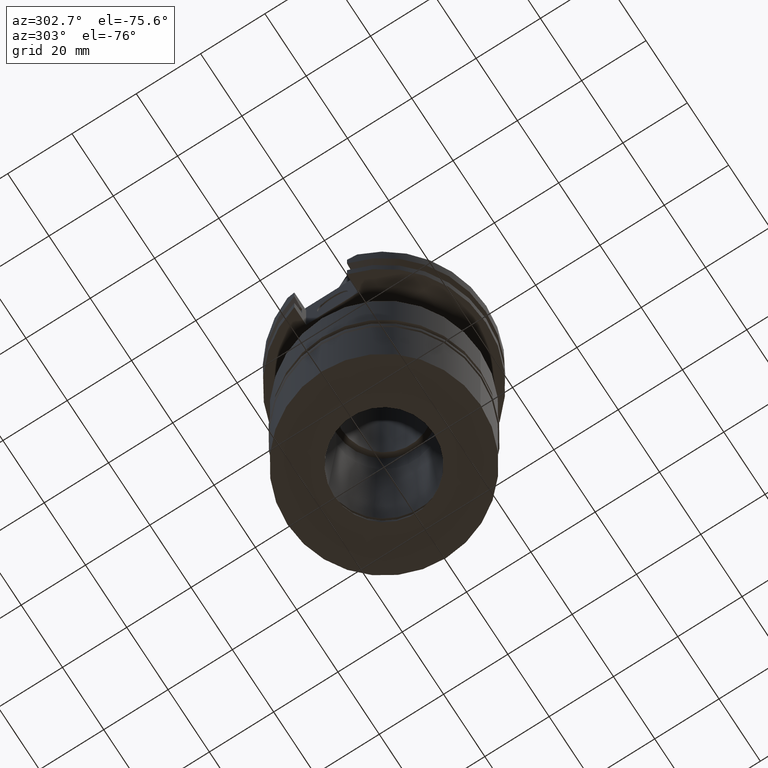
[diagram: clean part render]
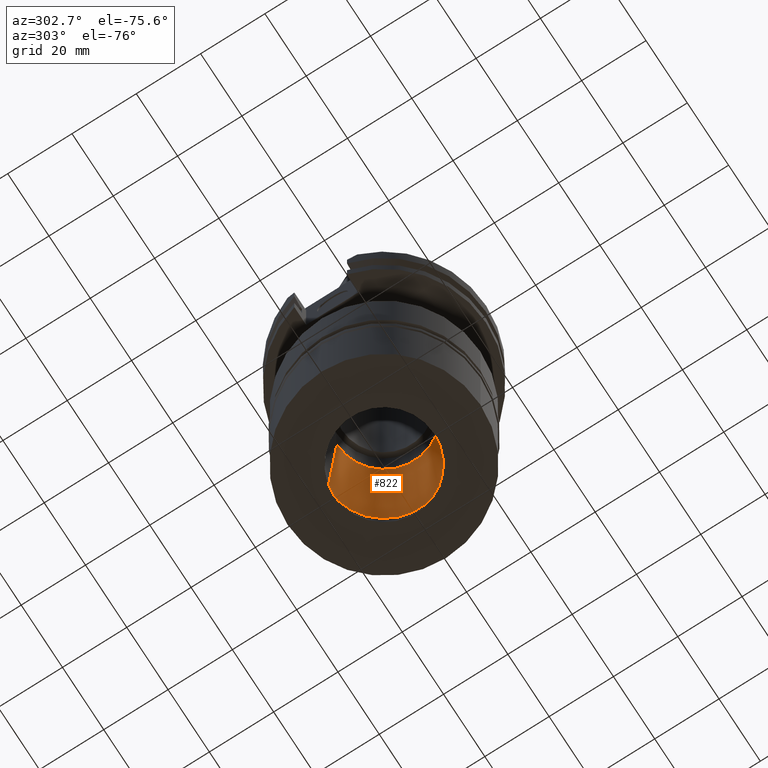
[diagram: same view with one face highlighted and labeled with its STEP entity id]
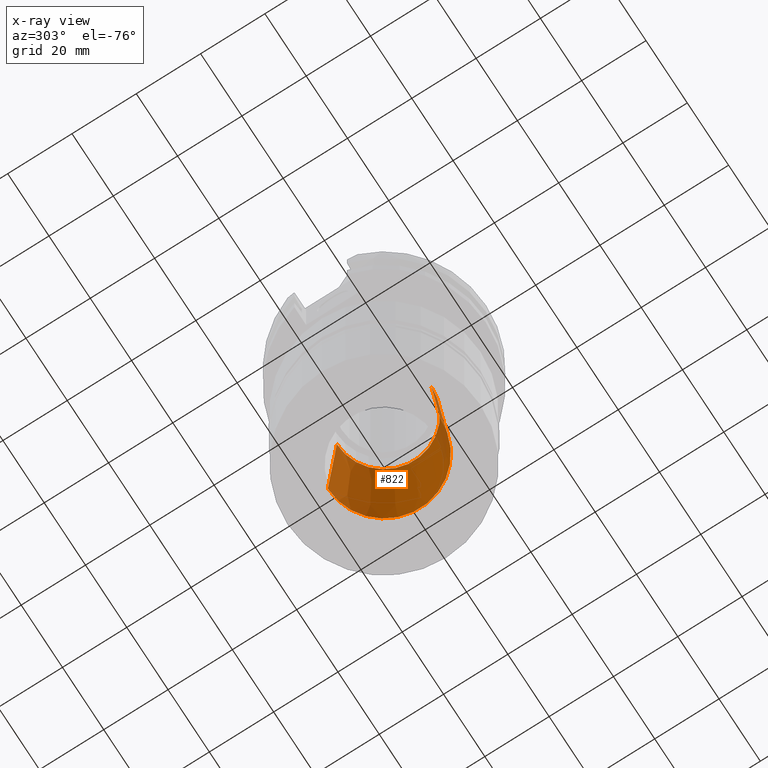
[diagram: x-ray of the same camera — body ghosted, the highlighted face saturated]
A machine part, auxiliary view. The second image highlights one B-rep face of the part: STEP entity #822.
The next image is the same camera in x-ray: the body ghosted, the highlighted face saturated — about 6% of this face is hidden behind the body in this view.
In plain terms, the highlighted conical surface has half-angle 4 deg.
Its self-contained STEP definition (entity closure, byte-faithful):
#30 = VERTEX_POINT ( 'NONE', #371 ) ;
#66 = VERTEX_POINT ( 'NONE', #847 ) ;
#175 = EDGE_CURVE ( 'NONE', #66, #1912, #3142, .T. ) ;
#314 = EDGE_CURVE ( 'NONE', #30, #3032, #1144, .T. ) ;
#363 = CARTESIAN_POINT ( 'NONE',  ( 0.0000000000000000000, 0.0000000000000000000, -49.39999999999999858 ) ) ;
#371 = CARTESIAN_POINT ( 'NONE',  ( 0.0000000000000000000, -17.50000000000000000, -90.09999999999999432 ) ) ;
#408 = CARTESIAN_POINT ( 'NONE',  ( 0.0000000000000000000, -17.50000000000000000, -90.09999999999999432 ) ) ;
#520 = ORIENTED_EDGE ( 'NONE', *, *, #1904, .T. ) ;
#639 = EDGE_LOOP ( 'NONE', ( #2508, #2713, #520, #1961 ) ) ;
#743 = EDGE_CURVE ( 'NONE', #66, #30, #2431, .T. ) ;
#811 = AXIS2_PLACEMENT_3D ( 'NONE', #2167, #3102, #2870 ) ;
#817 = AXIS2_PLACEMENT_3D ( 'NONE', #363, #2090, #2590 ) ;
#822 = ADVANCED_FACE ( 'NONE', ( #843 ), #2672, .F. ) ;
#826 = DIRECTION ( 'NONE',  ( 0.0000000000000000000, 0.0000000000000000000, -1.000000000000000000 ) ) ;
#843 = FACE_OUTER_BOUND ( 'NONE', #639, .T. ) ;
#847 = CARTESIAN_POINT ( 'NONE',  ( 0.0000000000000000000, 17.50000000000000000, -90.09999999999999432 ) ) ;
#1144 = LINE ( 'NONE', #408, #1312 ) ;
#1312 = VECTOR ( 'NONE', #1472, 1000.000000000000114 ) ;
#1472 = DIRECTION ( 'NONE',  ( 0.0000000000000000000, 0.06975647374412166646, 0.9975640502598245307 ) ) ;
#1619 = CARTESIAN_POINT ( 'NONE',  ( 0.0000000000000000000, 14.65397875389999882, -49.39999999999999858 ) ) ;
#1802 = DIRECTION ( 'NONE',  ( 0.0000000000000000000, -1.000000000000000000, 0.0000000000000000000 ) ) ;
#1825 = VECTOR ( 'NONE', #2874, 1000.000000000000114 ) ;
#1881 = CARTESIAN_POINT ( 'NONE',  ( 0.0000000000000000000, 17.50000000000000000, -90.09999999999999432 ) ) ;
#1904 = EDGE_CURVE ( 'NONE', #3032, #1912, #2308, .T. ) ;
#1912 = VERTEX_POINT ( 'NONE', #1619 ) ;
#1961 = ORIENTED_EDGE ( 'NONE', *, *, #175, .F. ) ;
#2090 = DIRECTION ( 'NONE',  ( 0.0000000000000000000, 0.0000000000000000000, 1.000000000000000000 ) ) ;
#2144 = AXIS2_PLACEMENT_3D ( 'NONE', #2976, #826, #1802 ) ;
#2167 = CARTESIAN_POINT ( 'NONE',  ( 0.0000000000000000000, 0.0000000000000000000, -90.09999999999999432 ) ) ;
#2308 = CIRCLE ( 'NONE', #817, 14.65397875389999882 ) ;
#2431 = CIRCLE ( 'NONE', #811, 17.50000000000000000 ) ;
#2508 = ORIENTED_EDGE ( 'NONE', *, *, #743, .T. ) ;
#2590 = DIRECTION ( 'NONE',  ( 0.0000000000000000000, -1.000000000000000000, 0.0000000000000000000 ) ) ;
#2672 = CONICAL_SURFACE ( 'NONE', #2144, 16.07698937694999941, 0.06981317007975955391 ) ;
#2713 = ORIENTED_EDGE ( 'NONE', *, *, #314, .T. ) ;
#2870 = DIRECTION ( 'NONE',  ( 0.0000000000000000000, 1.000000000000000000, 0.0000000000000000000 ) ) ;
#2874 = DIRECTION ( 'NONE',  ( 0.0000000000000000000, -0.06975647374412166646, 0.9975640502598245307 ) ) ;
#2976 = CARTESIAN_POINT ( 'NONE',  ( 0.0000000000000000000, 0.0000000000000000000, -69.75000000000000000 ) ) ;
#3032 = VERTEX_POINT ( 'NONE', #3120 ) ;
#3102 = DIRECTION ( 'NONE',  ( 0.0000000000000000000, 0.0000000000000000000, -1.000000000000000000 ) ) ;
#3120 = CARTESIAN_POINT ( 'NONE',  ( 0.0000000000000000000, -14.65397875389999882, -49.39999999999999858 ) ) ;
#3142 = LINE ( 'NONE', #1881, #1825 ) ;